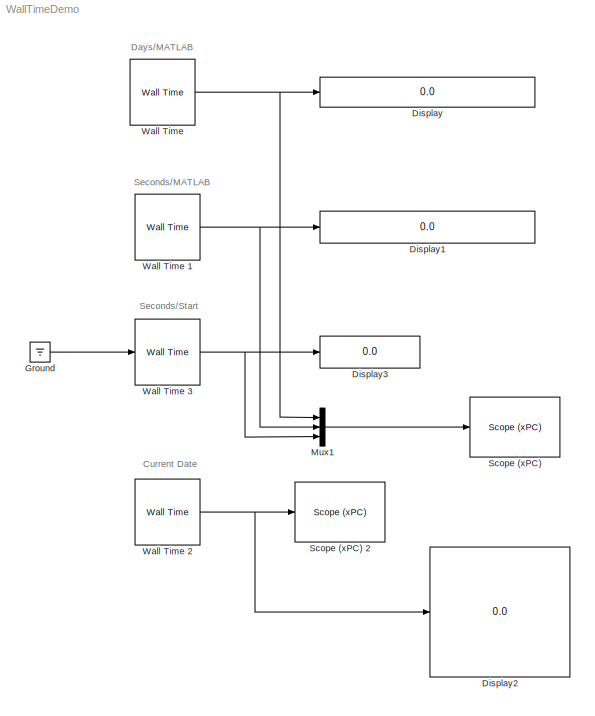
MODEL WallTimeDemo
KIND model
BLOCK [Display] Display
  Decimation = 1
  Format = long_e
  Lockdown = off
  Ports = [1]
BLOCK [Display] Display1
  Decimation = 1
  Format = long_e
  Lockdown = off
  Ports = [1]
BLOCK [Display] Display2
  Decimation = 1
  Lockdown = off
  Ports = [1]
BLOCK [Display] Display3
  Decimation = 1
  Lockdown = off
  Ports = [1]
BLOCK [Ground] Ground
BLOCK [Mux] Mux1
  DisplayOption = bar
  Inputs = 3
  Ports = [3, 1]
BLOCK [Reference] Scope (xPC)   REF=xpclib/Misc./Scope (xPC) 
  FunctionWithSeparateData = off
  Ports = [1]
  RTWMemSecDataConstants = Inherit from model
  RTWMemSecDataInternal = Inherit from model
  RTWMemSecDataParameters = Inherit from model
  RTWMemSecFuncExecute = Inherit from model
  RTWMemSecFuncInitTerm = Inherit from model
  ShowPortLabels = FromPortIcon
  SourceBlock = xpclib/Misc./Scope (xPC)
  SourceType = xpcscopeblock
  SystemSampleTime = -1
  autorestart = off
  autostart = on
  filename = data.dat
  formatstr = ' Days since Epoch:       %15.6f, Seconds since Epoch: %15.6f, Seconds since Block Start: %6.6f'
  grid = on
  interleave = 1
  mode = Lazy
  noprepostsamples = 0
  nosamples = 10
  scopeno = 1
  scopetype = Target
  triggerlevel = 0.0
  triggermode = FreeRun
  triggersample = 0
  triggerscope = 1
  triggersignal = 1
  triggerslope = Either
  viewmode = Numerical
  writesize = 512
  ylimits = [0,0]
BLOCK [Reference] Scope (xPC) 2  REF=xpclib/Misc./Scope (xPC) 
  FunctionWithSeparateData = off
  Ports = [1]
  RTWMemSecDataConstants = Inherit from model
  RTWMemSecDataInternal = Inherit from model
  RTWMemSecDataParameters = Inherit from model
  RTWMemSecFuncExecute = Inherit from model
  RTWMemSecFuncInitTerm = Inherit from model
  ShowPortLabels = FromPortIcon
  SourceBlock = xpclib/Misc./Scope (xPC)
  SourceType = xpcscopeblock
  SystemSampleTime = -1
  autorestart = off
  autostart = on
  filename = data.dat
  formatstr = ' Current Year: %4.0f, Current Month:  %2.0f, Current Day:    %2.0f, Current Hour:   %2.0f, Current Min:    %2.0f, Current Sec:    %2.0f'
  grid = on
  interleave = 1
  mode = Lazy
  noprepostsamples = 0
  nosamples = 10
  scopeno = 3
  scopetype = Target
  triggerlevel = 0.0
  triggermode = FreeRun
  triggersample = 0
  triggerscope = 1
  triggersignal = 1
  triggerslope = Either
  viewmode = Numerical
  writesize = 512
  ylimits = [0,0]
BLOCK [Reference] Wall Time   REF=xpcwalltimelib/Wall Time 
  EpochSource = MATLAB
  EpochVector = datevec('01/01/1970')
  InputTrigger = off
  Ports = [0, 1]
  SampleTime = 0.005
  SourceBlock = xpcwalltimelib/Wall Time
  SourceType = xpcwalltime
  TimeFormat = Days
BLOCK [Reference] Wall Time 1  REF=xpcwalltimelib/Wall Time 
  EpochSource = MATLAB
  EpochVector = datevec('01/01/1970')
  InputTrigger = off
  Ports = [0, 1]
  SampleTime = 0.005
  SourceBlock = xpcwalltimelib/Wall Time
  SourceType = xpcwalltime
  TimeFormat = Seconds
BLOCK [Reference] Wall Time 2  REF=xpcwalltimelib/Wall Time 
  EpochSource = MATLAB
  EpochVector = datevec('01/01/1970')
  InputTrigger = off
  Ports = [0, 1]
  SampleTime = 0.005
  SourceBlock = xpcwalltimelib/Wall Time
  SourceType = xpcwalltime
  TimeFormat = Date
BLOCK [Reference] Wall Time 3  REF=xpcwalltimelib/Wall Time 
  EpochSource = Start
  EpochVector = datevec('01/01/1970')
  InputTrigger = on
  Ports = [1, 1]
  SampleTime = 0.001
  SourceBlock = xpcwalltimelib/Wall Time
  SourceType = xpcwalltime
  TimeFormat = Seconds
ANNOTATION (root): Current Date
ANNOTATION (root): Days/MATLAB
ANNOTATION (root): Seconds/MATLAB
ANNOTATION (root): Seconds/Start
LINE Ground:1 -> Wall Time 3:1
LINE Mux1:1 -> Scope (xPC) :1
NET Wall Time 1:1 -> Display1:1, Mux1:2
NET Wall Time 2:1 -> Display2:1, Scope (xPC) 2:1
NET Wall Time 3:1 -> Display3:1, Mux1:3
NET Wall Time :1 -> Display:1, Mux1:1
note: NET lines group one-source signal fan-out (src -> all destinations, sorted); 1:1 wires keep LINE
